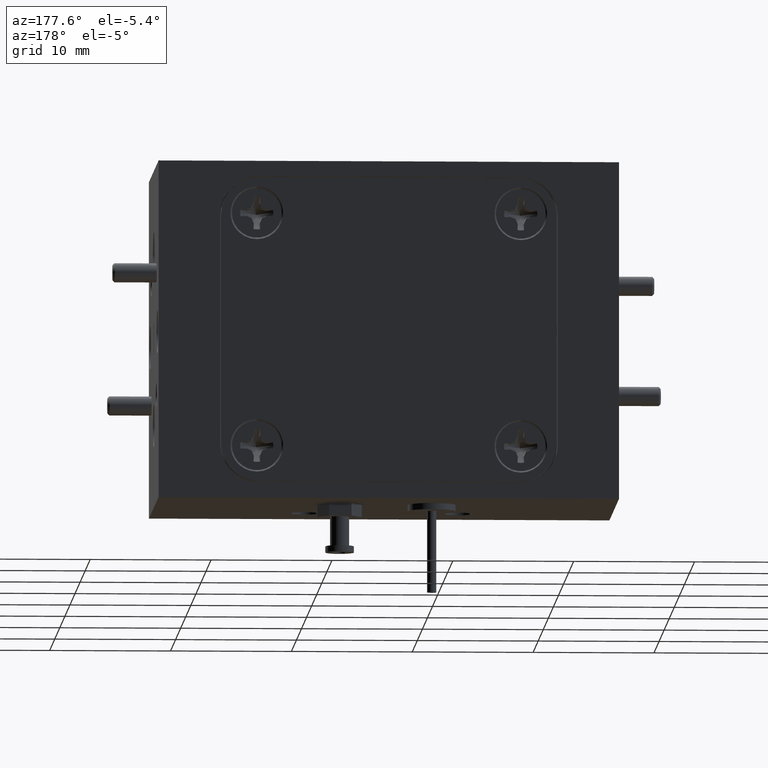
[diagram: clean part render]
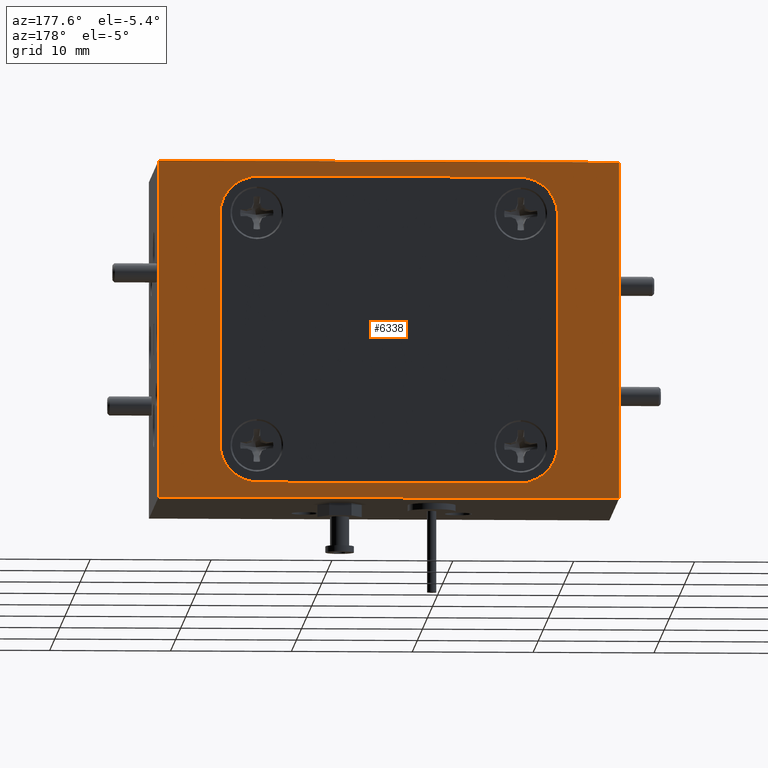
[diagram: same view with one face highlighted and labeled with its STEP entity id]
A machine part, auxiliary view. The second image highlights one B-rep face of the part: STEP entity #6338.
In plain terms, the highlighted planar face has unit normal (0, 1, 0).
Its self-contained STEP definition (entity closure, byte-faithful):
#80 = EDGE_CURVE ( 'NONE', #7991, #9650, #4416, .T. ) ;
#406 = CARTESIAN_POINT ( 'NONE',  ( -0.5927859036889993000, 0.7499999999999998900, -0.3314233499116480100 ) ) ;
#555 = LINE ( 'NONE', #5240, #5583 ) ;
#731 = DIRECTION ( 'NONE',  ( 0.0000000000000000000, 0.0000000000000000000, -1.000000000000000000 ) ) ;
#756 = VERTEX_POINT ( 'NONE', #6307 ) ;
#762 = EDGE_CURVE ( 'NONE', #4613, #6319, #8298, .T. ) ;
#778 = VECTOR ( 'NONE', #7077, 39.37007874015748100 ) ;
#906 = DIRECTION ( 'NONE',  ( 0.0000000000000000000, 0.0000000000000000000, -1.000000000000000000 ) ) ;
#1057 = FACE_OUTER_BOUND ( 'NONE', #10586, .T. ) ;
#1066 = AXIS2_PLACEMENT_3D ( 'NONE', #8785, #3237, #1437 ) ;
#1398 = CARTESIAN_POINT ( 'NONE',  ( 0.5822140963110008500, 0.7499999999999998900, -0.1564233499116480200 ) ) ;
#1437 = DIRECTION ( 'NONE',  ( 0.0000000000000000000, 0.0000000000000000000, -1.000000000000000000 ) ) ;
#1491 = VECTOR ( 'NONE', #2650, 39.37007874015748100 ) ;
#1607 = AXIS2_PLACEMENT_3D ( 'NONE', #1398, #6857, #9712 ) ;
#1631 = AXIS2_PLACEMENT_3D ( 'NONE', #4526, #1892, #5456 ) ;
#1641 = EDGE_CURVE ( 'NONE', #756, #10760, #8436, .T. ) ;
#1801 = DIRECTION ( 'NONE',  ( 0.0000000000000000000, 1.000000000000000000, 0.0000000000000000000 ) ) ;
#1892 = DIRECTION ( 'NONE',  ( 0.0000000000000000000, 1.000000000000000000, 0.0000000000000000000 ) ) ;
#2042 = VERTEX_POINT ( 'NONE', #9972 ) ;
#2189 = ORIENTED_EDGE ( 'NONE', *, *, #762, .T. ) ;
#2245 = CARTESIAN_POINT ( 'NONE',  ( 0.5822140963110008500, 0.7499999999999998900, 0.5935766500883520300 ) ) ;
#2335 = VERTEX_POINT ( 'NONE', #8640 ) ;
#2650 = DIRECTION ( 'NONE',  ( 0.0000000000000000000, 0.0000000000000000000, -1.000000000000000000 ) ) ;
#2780 = EDGE_CURVE ( 'NONE', #6319, #756, #555, .T. ) ;
#2854 = CIRCLE ( 'NONE', #1607, 0.1249999999999999600 ) ;
#3009 = VERTEX_POINT ( 'NONE', #10187 ) ;
#3029 = VECTOR ( 'NONE', #3405, 39.37007874015748100 ) ;
#3157 = EDGE_CURVE ( 'NONE', #10760, #4613, #4145, .T. ) ;
#3216 = DIRECTION ( 'NONE',  ( -1.000000000000000000, 0.0000000000000000000, 1.606969408037801500E-016 ) ) ;
#3237 = DIRECTION ( 'NONE',  ( 0.0000000000000000000, 1.000000000000000000, 0.0000000000000000000 ) ) ;
#3268 = ORIENTED_EDGE ( 'NONE', *, *, #5952, .F. ) ;
#3405 = DIRECTION ( 'NONE',  ( 1.000000000000000000, 0.0000000000000000000, -1.606969408037801500E-016 ) ) ;
#3587 = CIRCLE ( 'NONE', #1066, 0.1249999999999999600 ) ;
#3737 = CARTESIAN_POINT ( 'NONE',  ( 0.7072140963110008500, 0.7499999999999998900, -0.1564233499116480200 ) ) ;
#3836 = VECTOR ( 'NONE', #3216, 39.37007874015748100 ) ;
#3917 = CARTESIAN_POINT ( 'NONE',  ( -0.3927859036889992400, 0.7499999999999998900, -0.1564233499116478900 ) ) ;
#4025 = ORIENTED_EDGE ( 'NONE', *, *, #9077, .F. ) ;
#4145 = LINE ( 'NONE', #10458, #4286 ) ;
#4174 = VERTEX_POINT ( 'NONE', #8896 ) ;
#4286 = VECTOR ( 'NONE', #5909, 39.37007874015748100 ) ;
#4416 = LINE ( 'NONE', #5192, #3836 ) ;
#4526 = CARTESIAN_POINT ( 'NONE',  ( 0.1572140963110008300, 0.7499999999999998900, 0.2185766500883520600 ) ) ;
#4613 = VERTEX_POINT ( 'NONE', #10502 ) ;
#4649 = VERTEX_POINT ( 'NONE', #11514 ) ;
#4879 = ORIENTED_EDGE ( 'NONE', *, *, #80, .F. ) ;
#4975 = DIRECTION ( 'NONE',  ( 0.0000000000000000000, 0.0000000000000000000, -1.000000000000000000 ) ) ;
#5138 = CIRCLE ( 'NONE', #9033, 0.1249999999999999600 ) ;
#5192 = CARTESIAN_POINT ( 'NONE',  ( -0.2677859036889994000, 0.7499999999999998900, -0.2814233499116478600 ) ) ;
#5240 = CARTESIAN_POINT ( 'NONE',  ( 0.9072140963110008100, 0.7499999999999998900, -0.3314233499116481200 ) ) ;
#5456 = DIRECTION ( 'NONE',  ( 0.0000000000000000000, 0.0000000000000000000, -1.000000000000000000 ) ) ;
#5468 = CARTESIAN_POINT ( 'NONE',  ( -0.3927859036889992400, 0.7499999999999998900, -0.1564233499116478900 ) ) ;
#5470 = ORIENTED_EDGE ( 'NONE', *, *, #6715, .F. ) ;
#5583 = VECTOR ( 'NONE', #731, 39.37007874015748100 ) ;
#5660 = ORIENTED_EDGE ( 'NONE', *, *, #3157, .T. ) ;
#5830 = VECTOR ( 'NONE', #6340, 39.37007874015748100 ) ;
#5909 = DIRECTION ( 'NONE',  ( 0.0000000000000000000, 0.0000000000000000000, 1.000000000000000000 ) ) ;
#5918 = CARTESIAN_POINT ( 'NONE',  ( -0.2677859036889994000, 0.7499999999999998900, -0.2814233499116478600 ) ) ;
#5933 = DIRECTION ( 'NONE',  ( 0.0000000000000000000, 1.000000000000000000, 0.0000000000000000000 ) ) ;
#5952 = EDGE_CURVE ( 'NONE', #2335, #2042, #11896, .T. ) ;
#5982 = AXIS2_PLACEMENT_3D ( 'NONE', #2245, #5933, #4975 ) ;
#6156 = CARTESIAN_POINT ( 'NONE',  ( -0.2677859036889994000, 0.7499999999999998900, 0.7185766500883521400 ) ) ;
#6307 = CARTESIAN_POINT ( 'NONE',  ( 0.9072140963110008100, 0.7499999999999998900, -0.3314233499116481200 ) ) ;
#6319 = VERTEX_POINT ( 'NONE', #11100 ) ;
#6338 = ADVANCED_FACE ( 'NONE', ( #11017, #1057 ), #7389, .T. ) ;
#6340 = DIRECTION ( 'NONE',  ( 1.000000000000000000, 0.0000000000000000000, -9.106159978880878600E-017 ) ) ;
#6498 = LINE ( 'NONE', #5468, #10565 ) ;
#6715 = EDGE_CURVE ( 'NONE', #11707, #4174, #6498, .T. ) ;
#6857 = DIRECTION ( 'NONE',  ( 0.0000000000000000000, 1.000000000000000000, 0.0000000000000000000 ) ) ;
#7049 = LINE ( 'NONE', #6156, #3029 ) ;
#7077 = DIRECTION ( 'NONE',  ( -1.000000000000000000, 0.0000000000000000000, 9.106159978880878600E-017 ) ) ;
#7303 = CARTESIAN_POINT ( 'NONE',  ( -0.5927859036889993000, 0.7499999999999998900, 0.7685766500883521900 ) ) ;
#7327 = ORIENTED_EDGE ( 'NONE', *, *, #2780, .T. ) ;
#7389 = PLANE ( 'NONE',  #1631 ) ;
#7456 = ORIENTED_EDGE ( 'NONE', *, *, #8220, .F. ) ;
#7902 = EDGE_CURVE ( 'NONE', #4649, #3009, #7049, .T. ) ;
#7991 = VERTEX_POINT ( 'NONE', #8337 ) ;
#8146 = EDGE_CURVE ( 'NONE', #3009, #2335, #10108, .T. ) ;
#8220 = EDGE_CURVE ( 'NONE', #4174, #4649, #3587, .T. ) ;
#8298 = LINE ( 'NONE', #7303, #5830 ) ;
#8337 = CARTESIAN_POINT ( 'NONE',  ( 0.5822140963110008500, 0.7499999999999998900, -0.2814233499116480200 ) ) ;
#8436 = LINE ( 'NONE', #406, #778 ) ;
#8640 = CARTESIAN_POINT ( 'NONE',  ( 0.7072140963110008500, 0.7499999999999998900, 0.5935766500883520300 ) ) ;
#8785 = CARTESIAN_POINT ( 'NONE',  ( -0.2677859036889994000, 0.7499999999999998900, 0.5935766500883521400 ) ) ;
#8896 = CARTESIAN_POINT ( 'NONE',  ( -0.3927859036889992400, 0.7499999999999998900, 0.5935766500883521400 ) ) ;
#9033 = AXIS2_PLACEMENT_3D ( 'NONE', #10034, #1801, #906 ) ;
#9077 = EDGE_CURVE ( 'NONE', #2042, #7991, #2854, .T. ) ;
#9369 = EDGE_CURVE ( 'NONE', #9650, #11707, #5138, .T. ) ;
#9650 = VERTEX_POINT ( 'NONE', #5918 ) ;
#9712 = DIRECTION ( 'NONE',  ( 0.0000000000000000000, 0.0000000000000000000, 1.000000000000000000 ) ) ;
#9972 = CARTESIAN_POINT ( 'NONE',  ( 0.7072140963110008500, 0.7499999999999998900, -0.1564233499116480200 ) ) ;
#10034 = CARTESIAN_POINT ( 'NONE',  ( -0.2677859036889994000, 0.7499999999999998900, -0.1564233499116478900 ) ) ;
#10108 = CIRCLE ( 'NONE', #5982, 0.1249999999999999600 ) ;
#10187 = CARTESIAN_POINT ( 'NONE',  ( 0.5822140963110008500, 0.7499999999999998900, 0.7185766500883520300 ) ) ;
#10348 = ORIENTED_EDGE ( 'NONE', *, *, #1641, .T. ) ;
#10458 = CARTESIAN_POINT ( 'NONE',  ( -0.5927859036889993000, 0.7499999999999998900, -0.3314233499116480100 ) ) ;
#10502 = CARTESIAN_POINT ( 'NONE',  ( -0.5927859036889993000, 0.7499999999999998900, 0.7685766500883521900 ) ) ;
#10565 = VECTOR ( 'NONE', #11962, 39.37007874015748100 ) ;
#10586 = EDGE_LOOP ( 'NONE', ( #7327, #10348, #5660, #2189 ) ) ;
#10652 = ORIENTED_EDGE ( 'NONE', *, *, #7902, .F. ) ;
#10760 = VERTEX_POINT ( 'NONE', #10961 ) ;
#10961 = CARTESIAN_POINT ( 'NONE',  ( -0.5927859036889993000, 0.7499999999999998900, -0.3314233499116480100 ) ) ;
#11017 = FACE_BOUND ( 'NONE', #11020, .T. ) ;
#11020 = EDGE_LOOP ( 'NONE', ( #7456, #5470, #11834, #4879, #4025, #3268, #11764, #10652 ) ) ;
#11100 = CARTESIAN_POINT ( 'NONE',  ( 0.9072140963110008100, 0.7499999999999998900, 0.7685766500883519600 ) ) ;
#11514 = CARTESIAN_POINT ( 'NONE',  ( -0.2677859036889994000, 0.7499999999999998900, 0.7185766500883521400 ) ) ;
#11707 = VERTEX_POINT ( 'NONE', #3917 ) ;
#11764 = ORIENTED_EDGE ( 'NONE', *, *, #8146, .F. ) ;
#11834 = ORIENTED_EDGE ( 'NONE', *, *, #9369, .F. ) ;
#11896 = LINE ( 'NONE', #3737, #1491 ) ;
#11962 = DIRECTION ( 'NONE',  ( 0.0000000000000000000, 0.0000000000000000000, 1.000000000000000000 ) ) ;